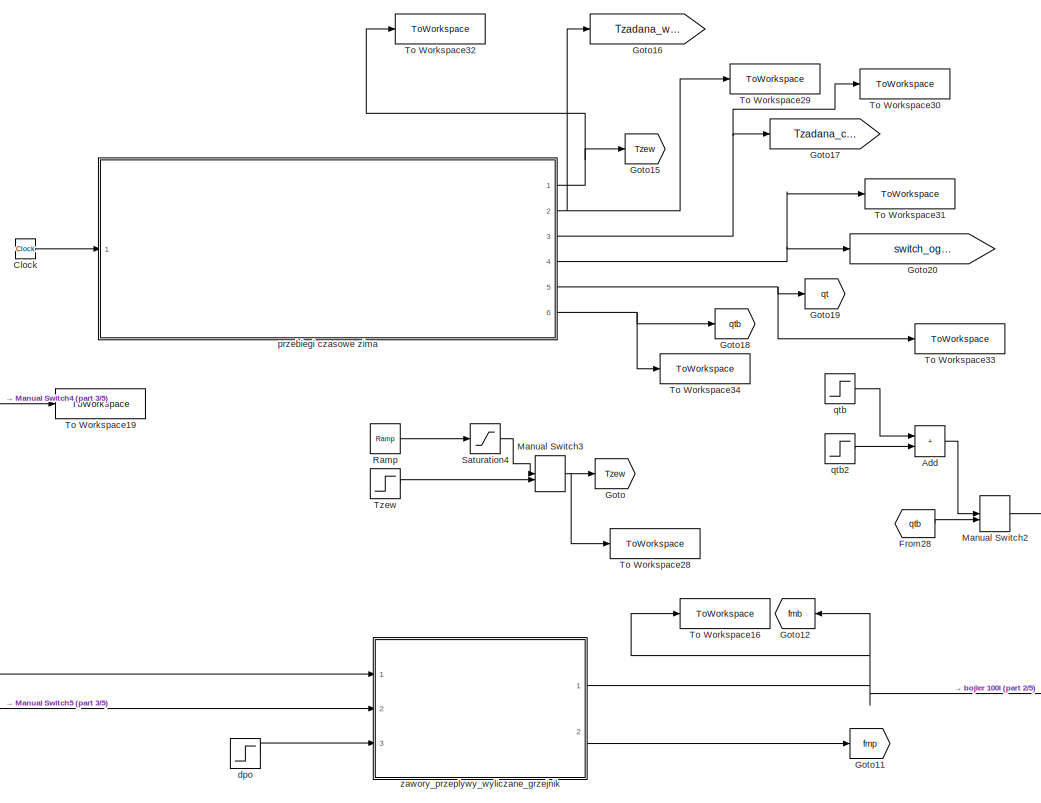
[diagram: root canvas - part 1/5, top center region]
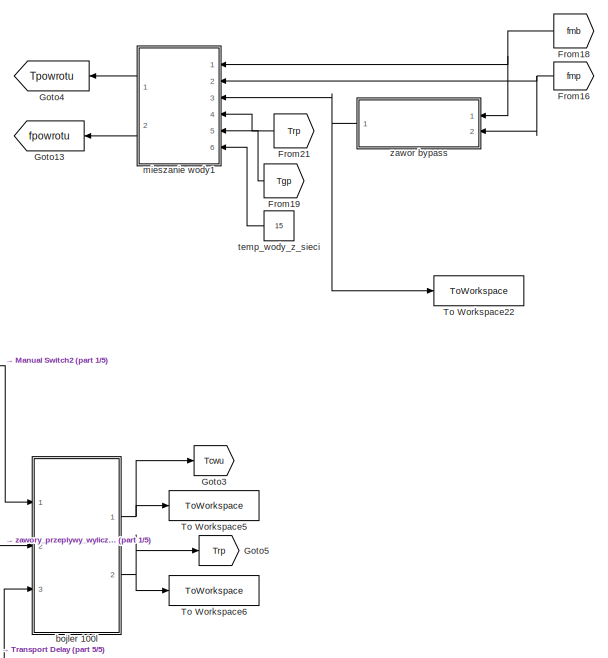
[diagram: root canvas - part 2/5, top right region]
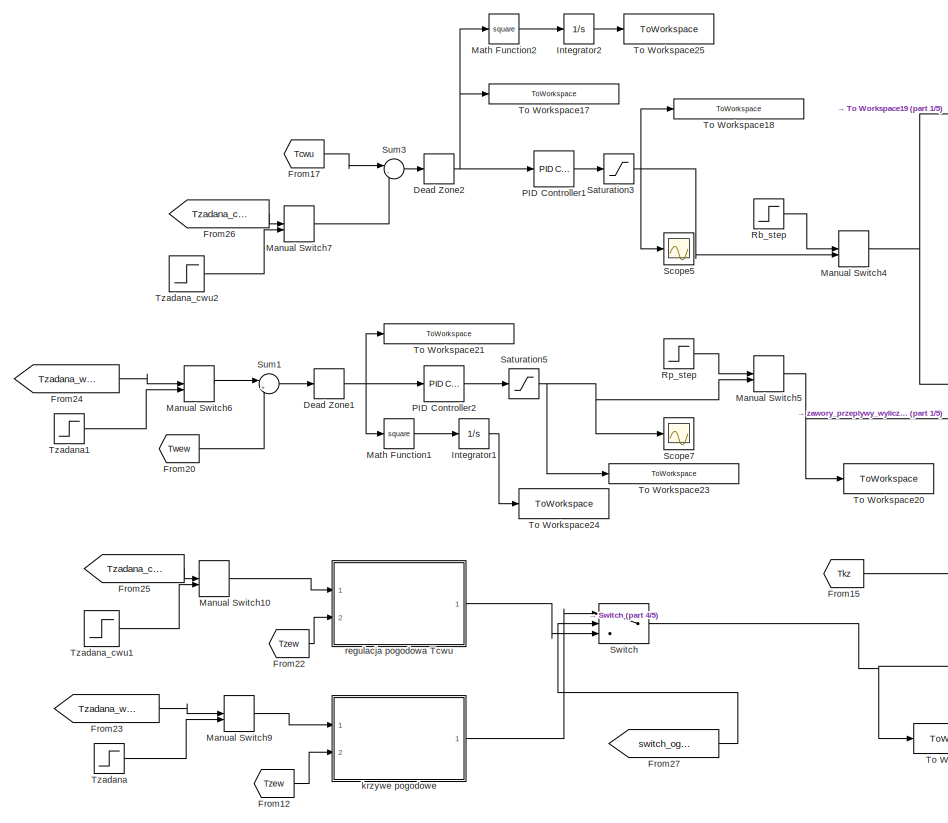
[diagram: root canvas - part 3/5, middle left region]
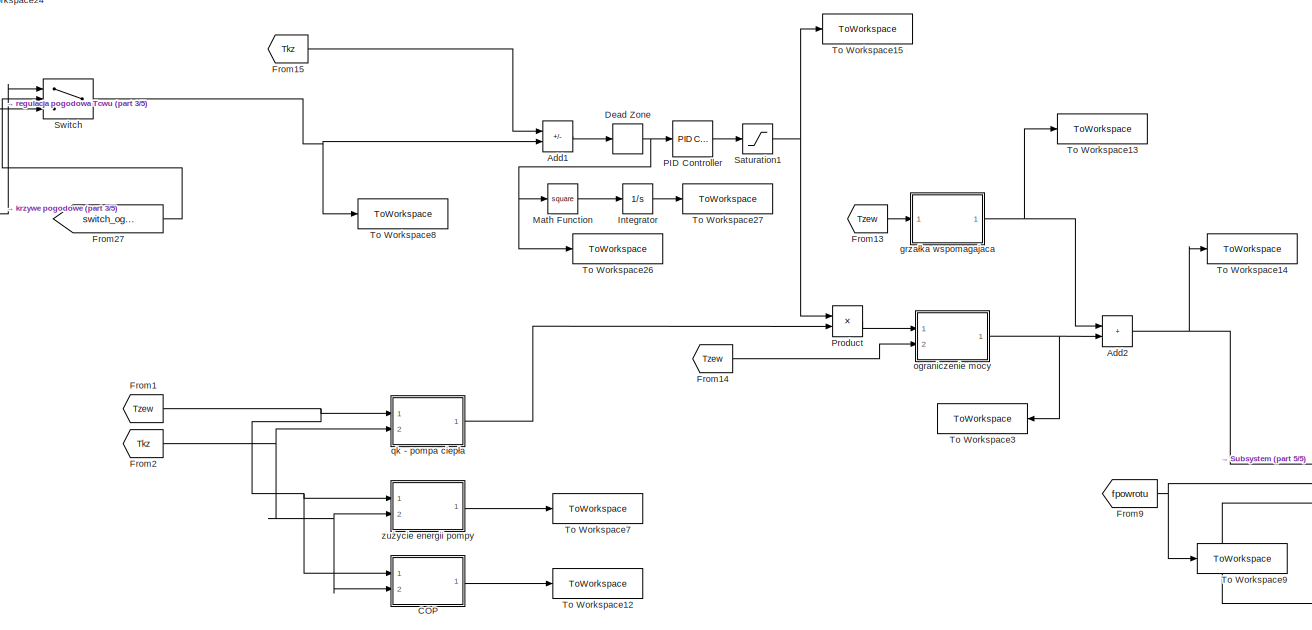
[diagram: root canvas - part 4/5, bottom center region]
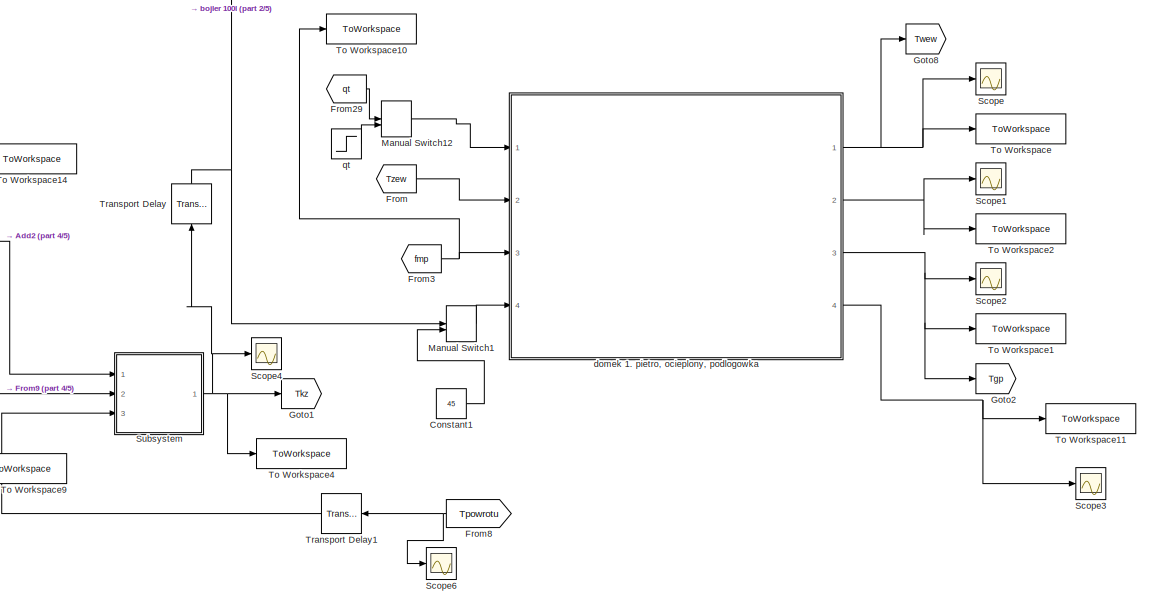
[diagram: root canvas - part 5/5, bottom right region]
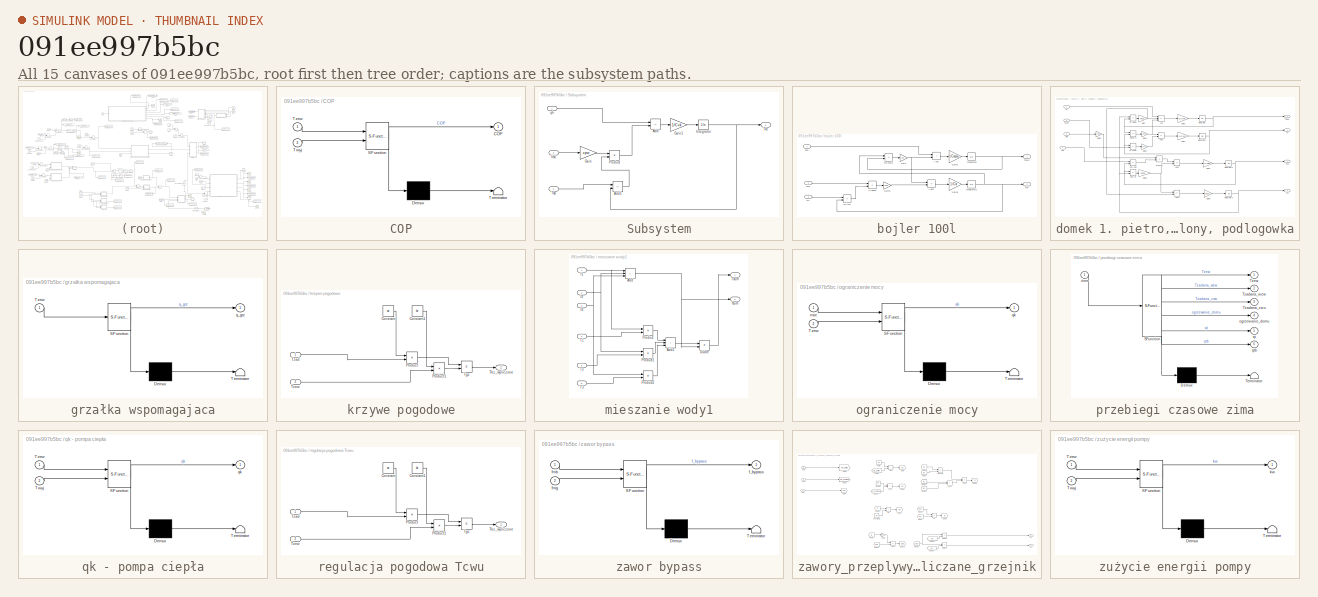
[diagram: thumbnail index - all 15 canvases of the model, root first then tree order]
MODEL slx_091ee997b5bc
KIND model
CONFIG AbsTol = auto
CONFIG EnableMultiTasking = off
CONFIG FixedStep = auto
CONFIG MaxStep = 10
CONFIG MinStep = auto
CONFIG RelTol = 1e-3
CONFIG SampleTimeConstraint = Unconstrained
CONFIG SolverName = VariableStepAuto
CONFIG StartTime = 0.0
CONFIG StopTime = 10.0
BLOCK [Sum] Add
  IconShape = rectangular
  Ports = [2, 1]
BLOCK [Sum] Add1
  IconShape = rectangular
  Inputs = -+
  Ports = [2, 1]
BLOCK [Sum] Add2
  IconShape = rectangular
  Ports = [2, 1]
BLOCK [SubSystem] COP
  ErrorFcn = Stateflow.Translate.translate
  PermitHierarchicalResolution = ExplicitOnly
  Ports = [2, 1]
  RequestExecContextInheritance = off
  SFBlockType = MATLAB Function
  TreatAsAtomicUnit = on
BLOCK [Demux] COP/ Demux 
  Outputs = 1
  Ports = [1, 1]
BLOCK [S-Function] COP/ SFunction 
  EnableBusSupport = on
  FunctionName = sf_sfun
  PortCounts = [2 2]
  Ports = [2, 2]
  SFcnIsStateOwnerBlock = off
  SFunctionDeploymentMode = off
  Tag = Stateflow S-Function 4
BLOCK [Terminator] COP/ Terminator 
BLOCK [Outport] COP/COP
BLOCK [Inport] COP/Twyj
  Port = 2
BLOCK [Inport] COP/Tzew
BLOCK [Clock] Clock
BLOCK [Constant] Constant1
  Value = 45
BLOCK [DeadZone] Dead Zone
  LowerValue = -0.15
  UpperValue = 0.15
BLOCK [DeadZone] Dead Zone1
  LowerValue = -0.55
  UpperValue = 0.55
BLOCK [DeadZone] Dead Zone2
  LowerValue = -0.35
  UpperValue = 0.35
BLOCK [From] From
  GotoTag = Tzew
BLOCK [From] From1
  GotoTag = Tzew
BLOCK [From] From12
  GotoTag = Tzew
BLOCK [From] From13
  GotoTag = Tzew
BLOCK [From] From14
  GotoTag = Tzew
BLOCK [From] From15
  GotoTag = Tkz
BLOCK [From] From16
  GotoTag = fmp
BLOCK [From] From17
  GotoTag = Tcwu
BLOCK [From] From18
  GotoTag = fmb
BLOCK [From] From19
  GotoTag = Tgp
BLOCK [From] From2
  GotoTag = Tkz
BLOCK [From] From20
  GotoTag = Twew
BLOCK [From] From21
  GotoTag = Trp
BLOCK [From] From22
  GotoTag = Tzew
BLOCK [From] From23
  GotoTag = Tzadana_wew
BLOCK [From] From24
  GotoTag = Tzadana_wew
BLOCK [From] From25
  GotoTag = Tzadana_cwu
BLOCK [From] From26
  GotoTag = Tzadana_cwu
BLOCK [From] From27
  GotoTag = switch_ogrzewania
BLOCK [From] From28
  GotoTag = qtb
BLOCK [From] From29
  GotoTag = qt
BLOCK [From] From3
  GotoTag = fmp
BLOCK [From] From8
  GotoTag = Tpowrotu
BLOCK [From] From9
  GotoTag = fpowrotu
BLOCK [Goto] Goto
  Commented = on
  GotoTag = Tzew
BLOCK [Goto] Goto1
  GotoTag = Tkz
BLOCK [Goto] Goto11
  GotoTag = fmp
BLOCK [Goto] Goto12
  GotoTag = fmb
BLOCK [Goto] Goto13
  GotoTag = fpowrotu
BLOCK [Goto] Goto15
  GotoTag = Tzew
BLOCK [Goto] Goto16
  GotoTag = Tzadana_wew
BLOCK [Goto] Goto17
  GotoTag = Tzadana_cwu
BLOCK [Goto] Goto18
  GotoTag = qtb
BLOCK [Goto] Goto19
  GotoTag = qt
BLOCK [Goto] Goto2
  GotoTag = Tgp
BLOCK [Goto] Goto20
  GotoTag = switch_ogrzewania
BLOCK [Goto] Goto3
  GotoTag = Tcwu
BLOCK [Goto] Goto4
  GotoTag = Tpowrotu
BLOCK [Goto] Goto5
  GotoTag = Trp
BLOCK [Goto] Goto8
  GotoTag = Twew
BLOCK [Integrator] Integrator
  Ports = [1, 1]
BLOCK [Integrator] Integrator1
  Ports = [1, 1]
BLOCK [Integrator] Integrator2
  Ports = [1, 1]
BLOCK [ManualSwitch] Manual Switch1
BLOCK [ManualSwitch] Manual Switch10
BLOCK [ManualSwitch] Manual Switch12
BLOCK [ManualSwitch] Manual Switch2
  CurrentSetting = 0
BLOCK [ManualSwitch] Manual Switch3
  Commented = on
BLOCK [ManualSwitch] Manual Switch4
  CurrentSetting = 0
BLOCK [ManualSwitch] Manual Switch5
  CurrentSetting = 0
BLOCK [ManualSwitch] Manual Switch6
BLOCK [ManualSwitch] Manual Switch7
BLOCK [ManualSwitch] Manual Switch9
BLOCK [Math] Math Function
  Operator = square
  Ports = [1, 1]
BLOCK [Math] Math Function1
  Operator = square
  Ports = [1, 1]
BLOCK [Math] Math Function2
  Operator = square
  Ports = [1, 1]
BLOCK [Reference] PID Controller  REF=slpidlib/PID Controller
  Ports = [1, 1]
  SourceBlock = slpidlib/PID Controller
  SourceProductBaseCode = SL
  SourceType = PID 1dof
BLOCK [Reference] PID Controller1  REF=slpidlib/PID Controller
  Ports = [1, 1]
  SourceBlock = slpidlib/PID Controller
  SourceProductBaseCode = SL
  SourceType = PID 1dof
BLOCK [Reference] PID Controller2  REF=slpidlib/PID Controller
  Ports = [1, 1]
  SourceBlock = slpidlib/PID Controller
  SourceProductBaseCode = SL
  SourceType = PID 1dof
BLOCK [Product] Product
  Ports = [2, 1]
BLOCK [Reference] Ramp  REF=simulink/Sources/Ramp
  Commented = on
  Ports = [0, 1]
  SourceBlock = simulink/Sources/Ramp
  SourceProductBaseCode = SL
  SourceType = Ramp
BLOCK [Step] Rb_step
  After = RzN + dRz_b
  Before = RzN
  SampleTime = 0
  Time = skok_czas2
BLOCK [Step] Rp_step
  After = RzN + dRz_p
  Before = RzN
  SampleTime = 0
  Time = skok_czas2
BLOCK [Saturate] Saturation1
  LowerLimit = 0.1
  UpperLimit = 1.42
BLOCK [Saturate] Saturation3
  LowerLimit = 0
  UpperLimit = 999999999999999999999999999999999999999999
BLOCK [Saturate] Saturation4
  Commented = on
  LowerLimit = -10
  UpperLimit = -4
BLOCK [Saturate] Saturation5
  LowerLimit = 0
  UpperLimit = 999999999999999999999999999999999999999999
BLOCK [Scope] Scope
  Floating = off
  NumInputPorts = 1
  Ports = [1]
  ScopeSpecificationString = Simulink.scopes.TimeScopeBlockCfg('CurrentConfiguration', extmgr.ConfigurationSet(extmgr.Configuration('Core','General UI',true),extmgr.Configuration('Core','Source UI',true),extmgr.Configuration('Sources','WiredSimulink',true,'DataLoggingVariableName','ScopeData1'),extmgr.Configuration('Visuals','Time Domain',true,'SerializedDisplays',{struct('MinYLimReal','8.71208','MaxYLimReal','28.71208','YLab...<+1401ch>
BLOCK [Scope] Scope1
  Floating = off
  NumInputPorts = 1
  Ports = [1]
  ScopeSpecificationString = Simulink.scopes.TimeScopeBlockCfg('CurrentConfiguration', extmgr.ConfigurationSet(extmgr.Configuration('Core','General UI',true),extmgr.Configuration('Core','Source UI',true),extmgr.Configuration('Sources','WiredSimulink',true,'DataLoggingVariableName','ScopeData2'),extmgr.Configuration('Visuals','Time Domain',true,'SerializedDisplays',{struct('MinYLimReal','2.75031','MaxYLimReal','5.24997','YLabe...<+1397ch>
BLOCK [Scope] Scope2
  Floating = off
  NumInputPorts = 1
  Ports = [1]
  ScopeSpecificationString = Simulink.scopes.TimeScopeBlockCfg('CurrentConfiguration', extmgr.ConfigurationSet(extmgr.Configuration('Core','General UI',true),extmgr.Configuration('Core','Source UI',true),extmgr.Configuration('Sources','WiredSimulink',true,'DataLoggingVariableName','ScopeData3'),extmgr.Configuration('Visuals','Time Domain',true,'SerializedDisplays',{struct('MinYLimReal','29.37575','MaxYLimReal','35.62492','YLa...<+1405ch>
BLOCK [Scope] Scope3
  Floating = off
  NumInputPorts = 1
  Ports = [1]
  ScopeSpecificationString = Simulink.scopes.TimeScopeBlockCfg('CurrentConfiguration', extmgr.ConfigurationSet(extmgr.Configuration('Core','General UI',true),extmgr.Configuration('Core','Source UI',true),extmgr.Configuration('Sources','WiredSimulink',true,'DataLoggingVariableName','ScopeData4'),extmgr.Configuration('Visuals','Time Domain',true,'SerializedDisplays',{struct('MinYLimReal','23.16317','MaxYLimReal','28.53743','YLa...<+1405ch>
BLOCK [Scope] Scope4
  Floating = off
  NumInputPorts = 1
  Ports = [1]
  ScopeSpecificationString = Simulink.scopes.TimeScopeBlockCfg('CurrentConfiguration', extmgr.ConfigurationSet(extmgr.Configuration('Core','General UI',true),extmgr.Configuration('Core','Source UI',true),extmgr.Configuration('Sources','WiredSimulink',true,'DataLoggingVariableName','ScopeData5'),extmgr.Configuration('Visuals','Time Domain',true,'SerializedDisplays',{struct('MinYLimReal','32.60181','MaxYLimReal','52.60181','YLa...<+1404ch>
BLOCK [Scope] Scope5
  Floating = off
  NumInputPorts = 1
  Ports = [1]
  ScopeSpecificationString = Simulink.scopes.TimeScopeBlockCfg('CurrentConfiguration', extmgr.ConfigurationSet(extmgr.Configuration('Core','General UI',true),extmgr.Configuration('Core','Source UI',true),extmgr.Configuration('Sources','WiredSimulink',true,'DataLoggingVariableName','ScopeData1'),extmgr.Configuration('Visuals','Time Domain',true,'SerializedDisplays',{struct('MinYLimReal','-12500.00000','MaxYLimReal','112500.000...<+1403ch>
BLOCK [Scope] Scope6
  Floating = off
  NumInputPorts = 1
  Ports = [1]
  ScopeSpecificationString = Simulink.scopes.TimeScopeBlockCfg('CurrentConfiguration', extmgr.ConfigurationSet(extmgr.Configuration('Core','General UI',true),extmgr.Configuration('Core','Source UI',true),extmgr.Configuration('Sources','WiredSimulink',true),extmgr.Configuration('Visuals','Time Domain',true,'SerializedDisplays',{struct('MinYLimReal','29.37575','MaxYLimReal','35.62492','YLabelReal','','MinYLimMag','29.37575','Ma...<+1396ch>
BLOCK [Scope] Scope7
  Floating = off
  NumInputPorts = 1
  Ports = [1]
  ScopeSpecificationString = Simulink.scopes.TimeScopeBlockCfg('CurrentConfiguration', extmgr.ConfigurationSet(extmgr.Configuration('Core','General UI',true),extmgr.Configuration('Core','Source UI',true),extmgr.Configuration('Sources','WiredSimulink',true,'DataLoggingVariableName','ScopeData2'),extmgr.Configuration('Visuals','Time Domain',true,'SerializedDisplays',{struct('MinYLimReal','-12500.00000','MaxYLimReal','112500.000...<+1403ch>
BLOCK [SubSystem] Subsystem
  Ports = [3, 1]
  RequestExecContextInheritance = off
BLOCK [Sum] Subsystem/Add
  IconShape = rectangular
  Inputs = +-
  Ports = [2, 1]
BLOCK [Sum] Subsystem/Add1
  IconShape = rectangular
  Inputs = -+
  Ports = [2, 1]
BLOCK [Gain] Subsystem/Gain
  Gain = cpw
BLOCK [Gain] Subsystem/Gain1
  Gain = 1/Cvk
BLOCK [Integrator] Subsystem/Integrator
  InitialCondition = Tkz0
  Ports = [1, 1]
BLOCK [Product] Subsystem/Product
  Ports = [2, 1]
BLOCK [Inport] Subsystem/Tkp
  Port = 3
BLOCK [Outport] Subsystem/Tkz
BLOCK [Inport] Subsystem/fmk
  Port = 2
BLOCK [Inport] Subsystem/qk
BLOCK [Sum] Sum1
  Inputs = |+-
  Ports = [2, 1]
BLOCK [Sum] Sum3
  Inputs = |-+
  Ports = [2, 1]
BLOCK [Switch] Switch
  InputSameDT = off
  SaturateOnIntegerOverflow = off
  Threshold = 1
BLOCK [ToWorkspace] To Workspace
  FixptAsFi = on
  MaxDataPoints = inf
  Ports = [1]
  SampleTime = -1
  VariableName = Twew
BLOCK [ToWorkspace] To Workspace1
  FixptAsFi = on
  MaxDataPoints = inf
  Ports = [1]
  SampleTime = -1
  VariableName = Tgp
BLOCK [ToWorkspace] To Workspace10
  FixptAsFi = on
  MaxDataPoints = inf
  Ports = [1]
  SampleTime = -1
  VariableName = f_dom
BLOCK [ToWorkspace] To Workspace11
  FixptAsFi = on
  MaxDataPoints = inf
  Ports = [1]
  SampleTime = -1
  VariableName = Tp
BLOCK [ToWorkspace] To Workspace12
  FixptAsFi = on
  MaxDataPoints = inf
  Ports = [1]
  SampleTime = -1
  VariableName = COP
BLOCK [ToWorkspace] To Workspace13
  FixptAsFi = on
  MaxDataPoints = inf
  Ports = [1]
  SampleTime = -1
  VariableName = kw_q_grz
BLOCK [ToWorkspace] To Workspace14
  FixptAsFi = on
  MaxDataPoints = inf
  Ports = [1]
  SampleTime = -1
  VariableName = CV
BLOCK [ToWorkspace] To Workspace15
  FixptAsFi = on
  MaxDataPoints = inf
  Ports = [1]
  SampleTime = -1
  VariableName = sprezarka
BLOCK [ToWorkspace] To Workspace16
  FixptAsFi = on
  MaxDataPoints = inf
  Ports = [1]
  SampleTime = -1
  VariableName = f_bojler
BLOCK [ToWorkspace] To Workspace17
  FixptAsFi = on
  MaxDataPoints = inf
  Ports = [1]
  SampleTime = -1
  VariableName = uchyb_f_bojlera
BLOCK [ToWorkspace] To Workspace18
  FixptAsFi = on
  MaxDataPoints = inf
  Ports = [1]
  SampleTime = -1
  VariableName = CV_f_bojlera
BLOCK [ToWorkspace] To Workspace19
  FixptAsFi = on
  MaxDataPoints = inf
  Ports = [1]
  SampleTime = -1
  VariableName = Rzb
BLOCK [ToWorkspace] To Workspace2
  FixptAsFi = on
  MaxDataPoints = inf
  Ports = [1]
  SampleTime = -1
  VariableName = Ts
BLOCK [ToWorkspace] To Workspace20
  FixptAsFi = on
  MaxDataPoints = inf
  Ports = [1]
  SampleTime = -1
  VariableName = Rzp
BLOCK [ToWorkspace] To Workspace21
  FixptAsFi = on
  MaxDataPoints = inf
  Ports = [1]
  SampleTime = -1
  VariableName = uchyb_f_domu
BLOCK [ToWorkspace] To Workspace22
  FixptAsFi = on
  MaxDataPoints = inf
  Ports = [1]
  SampleTime = -1
  VariableName = f_bypass
BLOCK [ToWorkspace] To Workspace23
  FixptAsFi = on
  MaxDataPoints = inf
  Ports = [1]
  SampleTime = -1
  VariableName = CV_f_domu
BLOCK [ToWorkspace] To Workspace24
  FixptAsFi = on
  MaxDataPoints = inf
  Ports = [1]
  SampleTime = -1
  VariableName = ISE_f_domu
BLOCK [ToWorkspace] To Workspace25
  FixptAsFi = on
  MaxDataPoints = inf
  Ports = [1]
  SampleTime = -1
  VariableName = ISE_f_bojlera
BLOCK [ToWorkspace] To Workspace26
  FixptAsFi = on
  MaxDataPoints = inf
  Ports = [1]
  SampleTime = -1
  VariableName = uchyb_pi_glowny
BLOCK [ToWorkspace] To Workspace27
  FixptAsFi = on
  MaxDataPoints = inf
  Ports = [1]
  SampleTime = -1
  VariableName = ISE_pi_glowny
BLOCK [ToWorkspace] To Workspace28
  Commented = on
  FixptAsFi = on
  MaxDataPoints = inf
  Ports = [1]
  SampleTime = -1
  VariableName = Tzew
BLOCK [ToWorkspace] To Workspace29
  FixptAsFi = on
  MaxDataPoints = inf
  Ports = [1]
  SampleTime = -1
  VariableName = Tzadana_wew
BLOCK [ToWorkspace] To Workspace3
  FixptAsFi = on
  MaxDataPoints = inf
  Ports = [1]
  SampleTime = -1
  VariableName = qk
BLOCK [ToWorkspace] To Workspace30
  FixptAsFi = on
  MaxDataPoints = inf
  Ports = [1]
  SampleTime = -1
  VariableName = Tzadana_cwu
BLOCK [ToWorkspace] To Workspace31
  FixptAsFi = on
  MaxDataPoints = inf
  Ports = [1]
  SampleTime = -1
  VariableName = switch_ogrzewania
BLOCK [ToWorkspace] To Workspace32
  FixptAsFi = on
  MaxDataPoints = inf
  Ports = [1]
  SampleTime = -1
  VariableName = Tzew1
BLOCK [ToWorkspace] To Workspace33
  FixptAsFi = on
  MaxDataPoints = inf
  Ports = [1]
  SampleTime = -1
  VariableName = qt
BLOCK [ToWorkspace] To Workspace34
  FixptAsFi = on
  MaxDataPoints = inf
  Ports = [1]
  SampleTime = -1
  VariableName = qtb
BLOCK [ToWorkspace] To Workspace4
  FixptAsFi = on
  MaxDataPoints = inf
  Ports = [1]
  SampleTime = -1
  VariableName = Tkz
BLOCK [ToWorkspace] To Workspace5
  FixptAsFi = on
  MaxDataPoints = inf
  Ports = [1]
  SampleTime = -1
  VariableName = Tcwu
BLOCK [ToWorkspace] To Workspace6
  FixptAsFi = on
  MaxDataPoints = inf
  Ports = [1]
  SampleTime = -1
  VariableName = Trp
BLOCK [ToWorkspace] To Workspace7
  FixptAsFi = on
  MaxDataPoints = inf
  Ports = [1]
  SampleTime = -1
  VariableName = kw
BLOCK [ToWorkspace] To Workspace8
  FixptAsFi = on
  MaxDataPoints = inf
  Ports = [1]
  SampleTime = -1
  VariableName = Tkz_wyliczone
BLOCK [ToWorkspace] To Workspace9
  FixptAsFi = on
  MaxDataPoints = inf
  Ports = [1]
  SampleTime = -1
  VariableName = f_pompa
BLOCK [TransportDelay] Transport Delay
  DelayTime = delay
  InitialOutput = TkzN
  NameLocation = right
  Ports = [1, 1]
BLOCK [TransportDelay] Transport Delay1
  DelayTime = delay
  InitialOutput = TkpN
  Ports = [1, 1]
BLOCK [Step] Tzadana
  After = TwewK
  Before = Tzadana0
  SampleTime = 0
  Time = skok_czas
BLOCK [Step] Tzadana1
  After = TwewK
  Before = Tzadana0
  SampleTime = 0
  Time = skok_czas
BLOCK [Step] Tzadana_cwu1
  After = Tset_cwu  + dTcwu
  Before = Tset_cwu
  SampleTime = 0
  Time = skok_czas
BLOCK [Step] Tzadana_cwu2
  After = Tset_cwu  + dTcwu
  Before = Tset_cwu
  SampleTime = 0
  Time = skok_czas
BLOCK [Step] Tzew
  After = TzewN+dTzew
  Before = TzewN
  Commented = on
  SampleTime = 0
  Time = skok_czas0
BLOCK [SubSystem] bojler 100l
  Ports = [3, 2]
  RequestExecContextInheritance = off
BLOCK [Sum] bojler 100l/Add
  IconShape = rectangular
  Ports = [2, 1]
BLOCK [Sum] bojler 100l/Add1
  IconShape = rectangular
  Inputs = -+
  Ports = [2, 1]
BLOCK [Gain] bojler 100l/Gain
  Gain = Kcr
BLOCK [Gain] bojler 100l/Gain1
  Gain = 1/Cvcwu
BLOCK [Gain] bojler 100l/Gain2
  Gain = cpw
BLOCK [Gain] bojler 100l/Gain3
  Gain = 1/Cvr
BLOCK [Integrator] bojler 100l/Integrator
  InitialCondition = Tcwu0
  Ports = [1, 1]
BLOCK [Integrator] bojler 100l/Integrator1
  InitialCondition = Trp0
  Ports = [1, 1]
BLOCK [Product] bojler 100l/Product
  Ports = [2, 1]
BLOCK [Outport] bojler 100l/Tcwu
BLOCK [Outport] bojler 100l/Trp
  Port = 2
BLOCK [Sum] bojler 100l/Trp-Tcwu
  IconShape = rectangular
  Inputs = +-
  Ports = [2, 1]
BLOCK [Inport] bojler 100l/Trz
  Port = 3
BLOCK [Sum] bojler 100l/Trz-Trp
  IconShape = rectangular
  Inputs = +-
  Ports = [2, 1]
BLOCK [Inport] bojler 100l/fmb
  Port = 2
BLOCK [Inport] bojler 100l/qtb
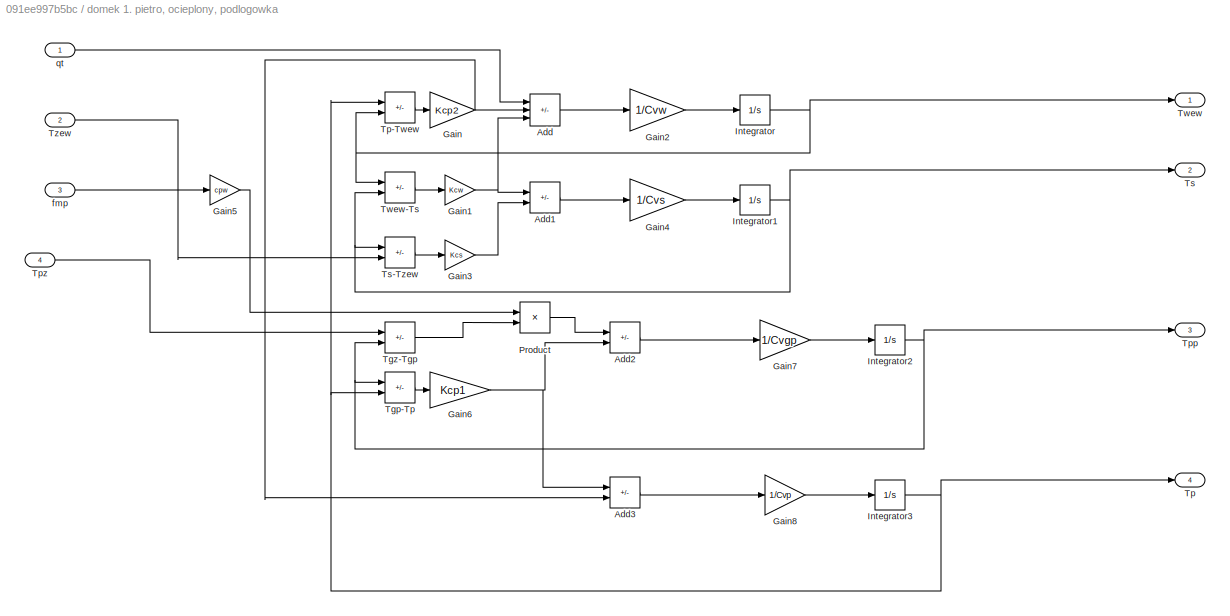
BLOCK [SubSystem] domek 1. pietro, ocieplony, podlogowka
  Ports = [4, 4]
  RequestExecContextInheritance = off
BLOCK [Sum] domek 1. pietro, ocieplony, podlogowka/Add
  IconShape = rectangular
  Inputs = ++-
  Ports = [3, 1]
BLOCK [Sum] domek 1. pietro, ocieplony, podlogowka/Add1
  IconShape = rectangular
  Inputs = +-
  Ports = [2, 1]
BLOCK [Sum] domek 1. pietro, ocieplony, podlogowka/Add2
  IconShape = rectangular
  Inputs = +-
  Ports = [2, 1]
BLOCK [Sum] domek 1. pietro, ocieplony, podlogowka/Add3
  IconShape = rectangular
  Inputs = +-
  Ports = [2, 1]
BLOCK [Gain] domek 1. pietro, ocieplony, podlogowka/Gain
  Gain = Kcp2
BLOCK [Gain] domek 1. pietro, ocieplony, podlogowka/Gain1
  Gain = Kcw
BLOCK [Gain] domek 1. pietro, ocieplony, podlogowka/Gain2
  Gain = 1/Cvw
BLOCK [Gain] domek 1. pietro, ocieplony, podlogowka/Gain3
  Gain = Kcs
BLOCK [Gain] domek 1. pietro, ocieplony, podlogowka/Gain4
  Gain = 1/Cvs
BLOCK [Gain] domek 1. pietro, ocieplony, podlogowka/Gain5
  Gain = cpw
BLOCK [Gain] domek 1. pietro, ocieplony, podlogowka/Gain6
  Gain = Kcp1
BLOCK [Gain] domek 1. pietro, ocieplony, podlogowka/Gain7
  Gain = 1/Cvgp
BLOCK [Gain] domek 1. pietro, ocieplony, podlogowka/Gain8
  Gain = 1/Cvp
BLOCK [Integrator] domek 1. pietro, ocieplony, podlogowka/Integrator
  InitialCondition = Twew0
  Ports = [1, 1]
BLOCK [Integrator] domek 1. pietro, ocieplony, podlogowka/Integrator1
  InitialCondition = Ts0
  Ports = [1, 1]
BLOCK [Integrator] domek 1. pietro, ocieplony, podlogowka/Integrator2
  InitialCondition = Tgp0
  Ports = [1, 1]
BLOCK [Integrator] domek 1. pietro, ocieplony, podlogowka/Integrator3
  InitialCondition = Tp0
  Ports = [1, 1]
BLOCK [Product] domek 1. pietro, ocieplony, podlogowka/Product
  Ports = [2, 1]
BLOCK [Sum] domek 1. pietro, ocieplony, podlogowka/Tgp-Tp
  IconShape = rectangular
  Inputs = +-
  Ports = [2, 1]
BLOCK [Sum] domek 1. pietro, ocieplony, podlogowka/Tgz-Tgp
  IconShape = rectangular
  Inputs = +-
  Ports = [2, 1]
BLOCK [Outport] domek 1. pietro, ocieplony, podlogowka/Tp
  Port = 4
BLOCK [Sum] domek 1. pietro, ocieplony, podlogowka/Tp-Twew
  IconShape = rectangular
  Inputs = +-
  Ports = [2, 1]
BLOCK [Outport] domek 1. pietro, ocieplony, podlogowka/Tpp
  Port = 3
BLOCK [Inport] domek 1. pietro, ocieplony, podlogowka/Tpz
  Port = 4
BLOCK [Outport] domek 1. pietro, ocieplony, podlogowka/Ts
  Port = 2
BLOCK [Sum] domek 1. pietro, ocieplony, podlogowka/Ts-Tzew
  IconShape = rectangular
  Inputs = +-
  Ports = [2, 1]
BLOCK [Outport] domek 1. pietro, ocieplony, podlogowka/Twew
BLOCK [Sum] domek 1. pietro, ocieplony, podlogowka/Twew-Ts
  IconShape = rectangular
  Inputs = +-
  Ports = [2, 1]
BLOCK [Inport] domek 1. pietro, ocieplony, podlogowka/Tzew
  Port = 2
BLOCK [Inport] domek 1. pietro, ocieplony, podlogowka/fmp
  Port = 3
BLOCK [Inport] domek 1. pietro, ocieplony, podlogowka/qt
BLOCK [Step] dpo
  After = dpoN + zmiana_po
  Before = dpoN
  SampleTime = 0
  Time = skok_czas
BLOCK [SubSystem] grzałka wspomagajaca
  ErrorFcn = Stateflow.Translate.translate
  PermitHierarchicalResolution = ExplicitOnly
  Ports = [1, 1]
  RequestExecContextInheritance = off
  SFBlockType = MATLAB Function
  TreatAsAtomicUnit = on
BLOCK [Demux] grzałka wspomagajaca/ Demux 
  Outputs = 1
  Ports = [1, 1]
BLOCK [S-Function] grzałka wspomagajaca/ SFunction 
  EnableBusSupport = on
  FunctionName = sf_sfun
  PortCounts = [1 2]
  Ports = [1, 2]
  SFcnIsStateOwnerBlock = off
  SFunctionDeploymentMode = off
  Tag = Stateflow S-Function 6
BLOCK [Terminator] grzałka wspomagajaca/ Terminator 
BLOCK [Inport] grzałka wspomagajaca/Tzew
BLOCK [Outport] grzałka wspomagajaca/q_grz
BLOCK [SubSystem] krzywe pogodowe
  Ports = [2, 1]
  RequestExecContextInheritance = off
BLOCK [Constant] krzywe pogodowe/Constant
  Value = az
BLOCK [Constant] krzywe pogodowe/Constant1
  Value = bz
BLOCK [Product] krzywe pogodowe/Product
  Ports = [2, 1]
BLOCK [Product] krzywe pogodowe/Product1
  Ports = [2, 1]
BLOCK [Sum] krzywe pogodowe/Tgz
  IconShape = rectangular
  Inputs = +-
  Ports = [2, 1]
BLOCK [Outport] krzywe pogodowe/Tkz_wyliczone
BLOCK [Inport] krzywe pogodowe/Tzad
BLOCK [Inport] krzywe pogodowe/Tzew
  Port = 2
BLOCK [SubSystem] mieszanie wody1
  Ports = [6, 2]
  RequestExecContextInheritance = off
BLOCK [Sum] mieszanie wody1/Add
  IconShape = rectangular
  Inputs = +++
  Ports = [3, 1]
BLOCK [Sum] mieszanie wody1/Add1
  IconShape = rectangular
  Inputs = +++
  Ports = [3, 1]
BLOCK [Product] mieszanie wody1/Divide
  Inputs = */
  Ports = [2, 1]
BLOCK [Product] mieszanie wody1/Product
  Ports = [2, 1]
BLOCK [Product] mieszanie wody1/Product1
  Ports = [2, 1]
BLOCK [Product] mieszanie wody1/Product2
  Ports = [2, 1]
BLOCK [Inport] mieszanie wody1/T1
  Port = 4
BLOCK [Inport] mieszanie wody1/T2
  Port = 5
BLOCK [Inport] mieszanie wody1/T3
  Port = 6
BLOCK [Outport] mieszanie wody1/Tsum
BLOCK [Inport] mieszanie wody1/f1
BLOCK [Inport] mieszanie wody1/f2
  Port = 2
BLOCK [Inport] mieszanie wody1/f3
  Port = 3
BLOCK [Outport] mieszanie wody1/fsum
  Port = 2
BLOCK [SubSystem] ograniczenie mocy
  ErrorFcn = Stateflow.Translate.translate
  PermitHierarchicalResolution = ExplicitOnly
  Ports = [2, 1]
  RequestExecContextInheritance = off
  SFBlockType = MATLAB Function
  TreatAsAtomicUnit = on
BLOCK [Demux] ograniczenie mocy/ Demux 
  Outputs = 1
  Ports = [1, 1]
BLOCK [S-Function] ograniczenie mocy/ SFunction 
  EnableBusSupport = on
  FunctionName = sf_sfun
  PortCounts = [2 2]
  Ports = [2, 2]
  SFcnIsStateOwnerBlock = off
  SFunctionDeploymentMode = off
  Tag = Stateflow S-Function 5
BLOCK [Terminator] ograniczenie mocy/ Terminator 
BLOCK [Inport] ograniczenie mocy/Tzew
  Port = 2
BLOCK [Inport] ograniczenie mocy/moc
BLOCK [Outport] ograniczenie mocy/qk
BLOCK [SubSystem] przebiegi czasowe zima
  ErrorFcn = Stateflow.Translate.translate
  PermitHierarchicalResolution = ExplicitOnly
  Ports = [1, 6]
  RequestExecContextInheritance = off
  SFBlockType = MATLAB Function
  TreatAsAtomicUnit = on
BLOCK [Demux] przebiegi czasowe zima/ Demux 
  Outputs = 1
  Ports = [1, 1]
BLOCK [S-Function] przebiegi czasowe zima/ SFunction 
  EnableBusSupport = on
  FunctionName = sf_sfun
  PortCounts = [1 7]
  Ports = [1, 7]
  SFcnIsStateOwnerBlock = off
  SFunctionDeploymentMode = off
  Tag = Stateflow S-Function 8
BLOCK [Terminator] przebiegi czasowe zima/ Terminator 
BLOCK [Outport] przebiegi czasowe zima/Tzadana_cwu
  Port = 3
BLOCK [Outport] przebiegi czasowe zima/Tzadana_wew
  Port = 2
BLOCK [Outport] przebiegi czasowe zima/Tzew
BLOCK [Outport] przebiegi czasowe zima/ogrzewanie_domu
  Port = 4
BLOCK [Outport] przebiegi czasowe zima/qt
  Port = 5
BLOCK [Outport] przebiegi czasowe zima/qtb
  Port = 6
BLOCK [Inport] przebiegi czasowe zima/time
BLOCK [SubSystem] qk - pompa ciepła
  ErrorFcn = Stateflow.Translate.translate
  PermitHierarchicalResolution = ExplicitOnly
  Ports = [2, 1]
  RequestExecContextInheritance = off
  SFBlockType = MATLAB Function
  TreatAsAtomicUnit = on
BLOCK [Demux] qk - pompa ciepła/ Demux 
  Outputs = 1
  Ports = [1, 1]
BLOCK [S-Function] qk - pompa ciepła/ SFunction 
  EnableBusSupport = on
  FunctionName = sf_sfun
  PortCounts = [2 2]
  Ports = [2, 2]
  SFcnIsStateOwnerBlock = off
  SFunctionDeploymentMode = off
  Tag = Stateflow S-Function 2
BLOCK [Terminator] qk - pompa ciepła/ Terminator 
BLOCK [Inport] qk - pompa ciepła/Twyj
  Port = 2
BLOCK [Inport] qk - pompa ciepła/Tzew
BLOCK [Outport] qk - pompa ciepła/qk
BLOCK [Step] qt
  After = qtN+dqt
  Before = qtN
  SampleTime = 0
  Time = skok_czas
BLOCK [Step] qtb
  After = qtbN + dqtb
  Before = qtbN
  SampleTime = 0
  Time = skok_czas
BLOCK [Step] qtb2
  After = qtb2N + dqtb2
  Before = qtb2N
  SampleTime = 0
  Time = skok_czas2
  ZeroCross = off
BLOCK [SubSystem] regulacja pogodowa Tcwu
  Ports = [2, 1]
  RequestExecContextInheritance = off
BLOCK [Constant] regulacja pogodowa Tcwu/Constant
  Value = az
BLOCK [Constant] regulacja pogodowa Tcwu/Constant1
  Value = bz
BLOCK [Product] regulacja pogodowa Tcwu/Product
  Ports = [2, 1]
BLOCK [Product] regulacja pogodowa Tcwu/Product1
  Ports = [2, 1]
BLOCK [Sum] regulacja pogodowa Tcwu/Tgz
  IconShape = rectangular
  Inputs = +-
  Ports = [2, 1]
BLOCK [Outport] regulacja pogodowa Tcwu/Tkz_wyliczone
BLOCK [Inport] regulacja pogodowa Tcwu/Tzad
BLOCK [Inport] regulacja pogodowa Tcwu/Tzew
  Port = 2
BLOCK [Constant] temp_wody_z_sieci
  Value = 15
BLOCK [SubSystem] zawor bypass
  ErrorFcn = Stateflow.Translate.translate
  PermitHierarchicalResolution = ExplicitOnly
  Ports = [2, 1]
  RequestExecContextInheritance = off
  SFBlockType = MATLAB Function
  TreatAsAtomicUnit = on
BLOCK [Demux] zawor bypass/ Demux 
  Outputs = 1
  Ports = [1, 1]
BLOCK [S-Function] zawor bypass/ SFunction 
  EnableBusSupport = on
  FunctionName = sf_sfun
  PortCounts = [2 2]
  Ports = [2, 2]
  SFcnIsStateOwnerBlock = off
  SFunctionDeploymentMode = off
  Tag = Stateflow S-Function 7
BLOCK [Terminator] zawor bypass/ Terminator 
BLOCK [Outport] zawor bypass/f_bypass
BLOCK [Inport] zawor bypass/fmb
BLOCK [Inport] zawor bypass/fmg
  Port = 2
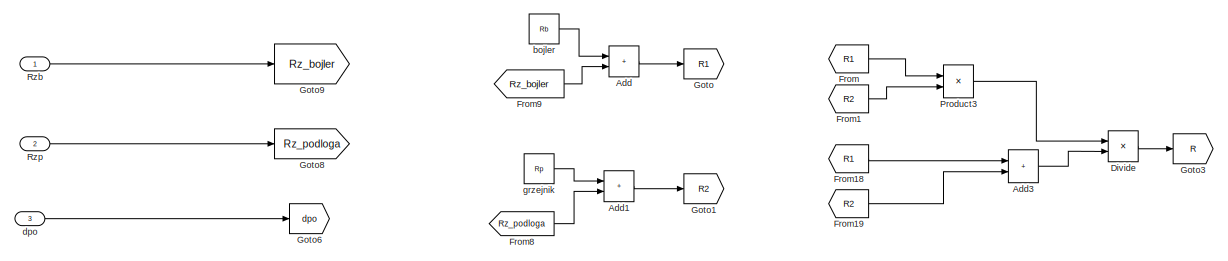
[diagram: zawory_przeplywy_wyliczane_grzejnik - part 1/2, full width, top band]
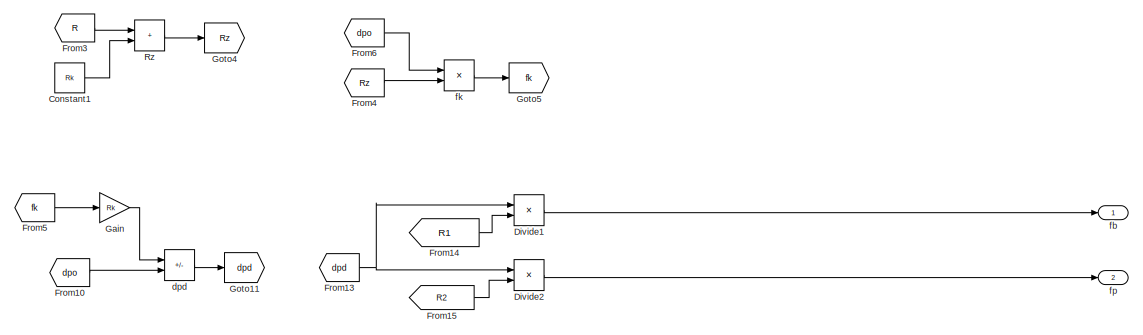
[diagram: zawory_przeplywy_wyliczane_grzejnik - part 2/2, bottom center region]
BLOCK [SubSystem] zawory_przeplywy_wyliczane_grzejnik
  Ports = [3, 2]
  RequestExecContextInheritance = off
BLOCK [Sum] zawory_przeplywy_wyliczane_grzejnik/Add
  IconShape = rectangular
  Ports = [2, 1]
BLOCK [Sum] zawory_przeplywy_wyliczane_grzejnik/Add1
  IconShape = rectangular
  Ports = [2, 1]
BLOCK [Sum] zawory_przeplywy_wyliczane_grzejnik/Add3
  IconShape = rectangular
  Ports = [2, 1]
BLOCK [Constant] zawory_przeplywy_wyliczane_grzejnik/Constant1
  Value = Rk
BLOCK [Product] zawory_przeplywy_wyliczane_grzejnik/Divide
  Inputs = */
  Ports = [2, 1]
BLOCK [Product] zawory_przeplywy_wyliczane_grzejnik/Divide1
  Inputs = */
  Ports = [2, 1]
BLOCK [Product] zawory_przeplywy_wyliczane_grzejnik/Divide2
  Inputs = */
  Ports = [2, 1]
BLOCK [From] zawory_przeplywy_wyliczane_grzejnik/From
  GotoTag = R1
BLOCK [From] zawory_przeplywy_wyliczane_grzejnik/From1
  GotoTag = R2
BLOCK [From] zawory_przeplywy_wyliczane_grzejnik/From10
  GotoTag = dpo
BLOCK [From] zawory_przeplywy_wyliczane_grzejnik/From13
  GotoTag = dpd
BLOCK [From] zawory_przeplywy_wyliczane_grzejnik/From14
  GotoTag = R1
BLOCK [From] zawory_przeplywy_wyliczane_grzejnik/From15
  GotoTag = R2
BLOCK [From] zawory_przeplywy_wyliczane_grzejnik/From18
  GotoTag = R1
BLOCK [From] zawory_przeplywy_wyliczane_grzejnik/From19
  GotoTag = R2
BLOCK [From] zawory_przeplywy_wyliczane_grzejnik/From3
  GotoTag = R
BLOCK [From] zawory_przeplywy_wyliczane_grzejnik/From4
  GotoTag = Rz
BLOCK [From] zawory_przeplywy_wyliczane_grzejnik/From5
  GotoTag = fk
BLOCK [From] zawory_przeplywy_wyliczane_grzejnik/From6
  GotoTag = dpo
BLOCK [From] zawory_przeplywy_wyliczane_grzejnik/From8
  GotoTag = Rz_podloga
BLOCK [From] zawory_przeplywy_wyliczane_grzejnik/From9
  GotoTag = Rz_bojler
BLOCK [Gain] zawory_przeplywy_wyliczane_grzejnik/Gain
  Gain = Rk
BLOCK [Goto] zawory_przeplywy_wyliczane_grzejnik/Goto
  GotoTag = R1
BLOCK [Goto] zawory_przeplywy_wyliczane_grzejnik/Goto1
  GotoTag = R2
BLOCK [Goto] zawory_przeplywy_wyliczane_grzejnik/Goto11
  GotoTag = dpd
BLOCK [Goto] zawory_przeplywy_wyliczane_grzejnik/Goto3
  GotoTag = R
BLOCK [Goto] zawory_przeplywy_wyliczane_grzejnik/Goto4
  GotoTag = Rz
BLOCK [Goto] zawory_przeplywy_wyliczane_grzejnik/Goto5
  GotoTag = fk
BLOCK [Goto] zawory_przeplywy_wyliczane_grzejnik/Goto6
  GotoTag = dpo
BLOCK [Goto] zawory_przeplywy_wyliczane_grzejnik/Goto8
  GotoTag = Rz_podloga
BLOCK [Goto] zawory_przeplywy_wyliczane_grzejnik/Goto9
  GotoTag = Rz_bojler
BLOCK [Product] zawory_przeplywy_wyliczane_grzejnik/Product3
  Ports = [2, 1]
BLOCK [Sum] zawory_przeplywy_wyliczane_grzejnik/Rz
  IconShape = rectangular
  Ports = [2, 1]
BLOCK [Inport] zawory_przeplywy_wyliczane_grzejnik/Rzb
BLOCK [Inport] zawory_przeplywy_wyliczane_grzejnik/Rzp
  Port = 2
BLOCK [Constant] zawory_przeplywy_wyliczane_grzejnik/bojler
  Value = Rb
BLOCK [Sum] zawory_przeplywy_wyliczane_grzejnik/dpd
  IconShape = rectangular
  Inputs = -+
  Ports = [2, 1]
BLOCK [Inport] zawory_przeplywy_wyliczane_grzejnik/dpo
  Port = 3
BLOCK [Outport] zawory_przeplywy_wyliczane_grzejnik/fb
BLOCK [Product] zawory_przeplywy_wyliczane_grzejnik/fk
  Inputs = */
  Ports = [2, 1]
BLOCK [Outport] zawory_przeplywy_wyliczane_grzejnik/fp
  Port = 2
BLOCK [Constant] zawory_przeplywy_wyliczane_grzejnik/grzejnik
  Value = Rp
BLOCK [SubSystem] zużycie energii pompy
  ErrorFcn = Stateflow.Translate.translate
  PermitHierarchicalResolution = ExplicitOnly
  Ports = [2, 1]
  RequestExecContextInheritance = off
  SFBlockType = MATLAB Function
  TreatAsAtomicUnit = on
BLOCK [Demux] zużycie energii pompy/ Demux 
  Outputs = 1
  Ports = [1, 1]
BLOCK [S-Function] zużycie energii pompy/ SFunction 
  EnableBusSupport = on
  FunctionName = sf_sfun
  PortCounts = [2 2]
  Ports = [2, 2]
  SFcnIsStateOwnerBlock = off
  SFunctionDeploymentMode = off
  Tag = Stateflow S-Function 1
BLOCK [Terminator] zużycie energii pompy/ Terminator 
BLOCK [Inport] zużycie energii pompy/Twyj
  Port = 2
BLOCK [Inport] zużycie energii pompy/Tzew
BLOCK [Outport] zużycie energii pompy/kw
LINE Add1:1 -> Dead Zone:1
NET Add2:1 -> Subsystem:1, To Workspace14:1
LINE Add:1 -> Manual Switch2:1
LINE COP:1 -> To Workspace12:1
LINE Clock:1 -> przebiegi czasowe zima:1
LINE Constant1:1 -> Manual Switch1:2
NET Dead Zone1:1 -> Math Function1:1, PID Controller2:1, To Workspace21:1
NET Dead Zone2:1 -> Math Function2:1, PID Controller1:1, To Workspace17:1
NET Dead Zone:1 -> Math Function:1, PID Controller:1, To Workspace26:1
LINE From12:1 -> krzywe pogodowe:2
LINE From13:1 -> grzałka wspomagajaca:1
LINE From14:1 -> ograniczenie mocy:2
LINE From15:1 -> Add1:1
NET From16:1 -> mieszanie wody1:2, zawor bypass:2
LINE From17:1 -> Sum3:1
NET From18:1 -> mieszanie wody1:1, zawor bypass:1
LINE From19:1 -> mieszanie wody1:5
NET From1:1 -> COP:1, qk - pompa ciepła:1, zużycie energii pompy:1
LINE From20:1 -> Sum1:2
LINE From21:1 -> mieszanie wody1:4
LINE From22:1 -> regulacja pogodowa Tcwu:2
LINE From23:1 -> Manual Switch9:1
LINE From24:1 -> Manual Switch6:1
LINE From25:1 -> Manual Switch10:1
LINE From26:1 -> Manual Switch7:1
LINE From27:1 -> Switch:2
LINE From28:1 -> Manual Switch2:2
LINE From29:1 -> Manual Switch12:1
NET From2:1 -> COP:2, qk - pompa ciepła:2, zużycie energii pompy:2
NET From3:1 -> To Workspace10:1, domek 1. pietro, ocieplony, podlogowka:3
NET From8:1 -> Scope6:1, Transport Delay1:1
NET From9:1 -> Subsystem:2, To Workspace9:1
LINE From:1 -> domek 1. pietro, ocieplony, podlogowka:2
LINE Integrator1:1 -> To Workspace24:1
LINE Integrator2:1 -> To Workspace25:1
LINE Integrator:1 -> To Workspace27:1
LINE Manual Switch10:1 -> regulacja pogodowa Tcwu:1
LINE Manual Switch12:1 -> domek 1. pietro, ocieplony, podlogowka:1
LINE Manual Switch1:1 -> domek 1. pietro, ocieplony, podlogowka:4
LINE Manual Switch2:1 -> bojler 100l:1
NET Manual Switch3:1 -> Goto:1, To Workspace28:1
NET Manual Switch4:1 -> To Workspace19:1, zawory_przeplywy_wyliczane_grzejnik:1
NET Manual Switch5:1 -> To Workspace20:1, zawory_przeplywy_wyliczane_grzejnik:2
LINE Manual Switch6:1 -> Sum1:1
LINE Manual Switch7:1 -> Sum3:2
LINE Manual Switch9:1 -> krzywe pogodowe:1
LINE Math Function1:1 -> Integrator1:1
LINE Math Function2:1 -> Integrator2:1
LINE Math Function:1 -> Integrator:1
LINE PID Controller1:1 -> Saturation3:1
LINE PID Controller2:1 -> Saturation5:1
LINE PID Controller:1 -> Saturation1:1
LINE Product:1 -> ograniczenie mocy:1
LINE Ramp:1 -> Saturation4:1
LINE Rb_step:1 -> Manual Switch4:1
LINE Rp_step:1 -> Manual Switch5:1
NET Saturation1:1 -> Product:1, To Workspace15:1
NET Saturation3:1 -> Manual Switch4:2, Scope5:1, To Workspace18:1
LINE Saturation4:1 -> Manual Switch3:1
NET Saturation5:1 -> Manual Switch5:2, Scope7:1, To Workspace23:1
LINE Subsystem/Add1:1 -> Subsystem/Product:2
LINE Subsystem/Add:1 -> Subsystem/Gain1:1
LINE Subsystem/Gain1:1 -> Subsystem/Integrator:1
LINE Subsystem/Gain:1 -> Subsystem/Product:1
NET Subsystem/Integrator:1 -> Subsystem/Add1:2, Subsystem/Tkz:1
LINE Subsystem/Product:1 -> Subsystem/Add:2
LINE Subsystem/Tkp:1 -> Subsystem/Add1:1
LINE Subsystem/fmk:1 -> Subsystem/Gain:1
LINE Subsystem/qk:1 -> Subsystem/Add:1
NET Subsystem:1 -> Goto1:1, Scope4:1, To Workspace4:1, Transport Delay:1
LINE Sum1:1 -> Dead Zone1:1
LINE Sum3:1 -> Dead Zone2:1
NET Switch:1 -> Add1:2, To Workspace8:1
LINE Transport Delay1:1 -> Subsystem:3
NET Transport Delay:1 -> Manual Switch1:1, bojler 100l:3
LINE Tzadana1:1 -> Manual Switch6:2
LINE Tzadana:1 -> Manual Switch9:2
LINE Tzadana_cwu1:1 -> Manual Switch10:2
LINE Tzadana_cwu2:1 -> Manual Switch7:2
LINE Tzew:1 -> Manual Switch3:2
LINE bojler 100l/Add1:1 -> bojler 100l/Gain3:1
LINE bojler 100l/Add:1 -> bojler 100l/Gain1:1
LINE bojler 100l/Gain1:1 -> bojler 100l/Integrator:1
LINE bojler 100l/Gain2:1 -> bojler 100l/Add1:2
LINE bojler 100l/Gain3:1 -> bojler 100l/Integrator1:1
NET bojler 100l/Gain:1 -> bojler 100l/Add1:1, bojler 100l/Add:2
NET bojler 100l/Integrator1:1 -> bojler 100l/Trp-Tcwu:1, bojler 100l/Trp:1, bojler 100l/Trz-Trp:2
NET bojler 100l/Integrator:1 -> bojler 100l/Tcwu:1, bojler 100l/Trp-Tcwu:2
LINE bojler 100l/Product:1 -> bojler 100l/Gain2:1
LINE bojler 100l/Trp-Tcwu:1 -> bojler 100l/Gain:1
LINE bojler 100l/Trz-Trp:1 -> bojler 100l/Product:2
LINE bojler 100l/Trz:1 -> bojler 100l/Trz-Trp:1
LINE bojler 100l/fmb:1 -> bojler 100l/Product:1
LINE bojler 100l/qtb:1 -> bojler 100l/Add:1
NET bojler 100l:1 -> Goto3:1, To Workspace5:1
NET bojler 100l:2 -> Goto5:1, To Workspace6:1
LINE domek 1. pietro, ocieplony, podlogowka/Add1:1 -> domek 1. pietro, ocieplony, podlogowka/Gain4:1
LINE domek 1. pietro, ocieplony, podlogowka/Add2:1 -> domek 1. pietro, ocieplony, podlogowka/Gain7:1
LINE domek 1. pietro, ocieplony, podlogowka/Add3:1 -> domek 1. pietro, ocieplony, podlogowka/Gain8:1
LINE domek 1. pietro, ocieplony, podlogowka/Add:1 -> domek 1. pietro, ocieplony, podlogowka/Gain2:1
NET domek 1. pietro, ocieplony, podlogowka/Gain1:1 -> domek 1. pietro, ocieplony, podlogowka/Add1:1, domek 1. pietro, ocieplony, podlogowka/Add:3
LINE domek 1. pietro, ocieplony, podlogowka/Gain2:1 -> domek 1. pietro, ocieplony, podlogowka/Integrator:1
LINE domek 1. pietro, ocieplony, podlogowka/Gain3:1 -> domek 1. pietro, ocieplony, podlogowka/Add1:2
LINE domek 1. pietro, ocieplony, podlogowka/Gain4:1 -> domek 1. pietro, ocieplony, podlogowka/Integrator1:1
LINE domek 1. pietro, ocieplony, podlogowka/Gain5:1 -> domek 1. pietro, ocieplony, podlogowka/Product:1
NET domek 1. pietro, ocieplony, podlogowka/Gain6:1 -> domek 1. pietro, ocieplony, podlogowka/Add2:2, domek 1. pietro, ocieplony, podlogowka/Add3:1
LINE domek 1. pietro, ocieplony, podlogowka/Gain7:1 -> domek 1. pietro, ocieplony, podlogowka/Integrator2:1
LINE domek 1. pietro, ocieplony, podlogowka/Gain8:1 -> domek 1. pietro, ocieplony, podlogowka/Integrator3:1
NET domek 1. pietro, ocieplony, podlogowka/Gain:1 -> domek 1. pietro, ocieplony, podlogowka/Add3:2, domek 1. pietro, ocieplony, podlogowka/Add:2
NET domek 1. pietro, ocieplony, podlogowka/Integrator1:1 -> domek 1. pietro, ocieplony, podlogowka/Ts-Tzew:1, domek 1. pietro, ocieplony, podlogowka/Ts:1, domek 1. pietro, ocieplony, podlogowka/Twew-Ts:2
NET domek 1. pietro, ocieplony, podlogowka/Integrator2:1 -> domek 1. pietro, ocieplony, podlogowka/Tgp-Tp:1, domek 1. pietro, ocieplony, podlogowka/Tgz-Tgp:2, domek 1. pietro, ocieplony, podlogowka/Tpp:1
NET domek 1. pietro, ocieplony, podlogowka/Integrator3:1 -> domek 1. pietro, ocieplony, podlogowka/Tgp-Tp:2, domek 1. pietro, ocieplony, podlogowka/Tp-Twew:1, domek 1. pietro, ocieplony, podlogowka/Tp:1
NET domek 1. pietro, ocieplony, podlogowka/Integrator:1 -> domek 1. pietro, ocieplony, podlogowka/Tp-Twew:2, domek 1. pietro, ocieplony, podlogowka/Twew-Ts:1, domek 1. pietro, ocieplony, podlogowka/Twew:1
LINE domek 1. pietro, ocieplony, podlogowka/Product:1 -> domek 1. pietro, ocieplony, podlogowka/Add2:1
LINE domek 1. pietro, ocieplony, podlogowka/Tgp-Tp:1 -> domek 1. pietro, ocieplony, podlogowka/Gain6:1
LINE domek 1. pietro, ocieplony, podlogowka/Tgz-Tgp:1 -> domek 1. pietro, ocieplony, podlogowka/Product:2
LINE domek 1. pietro, ocieplony, podlogowka/Tp-Twew:1 -> domek 1. pietro, ocieplony, podlogowka/Gain:1
LINE domek 1. pietro, ocieplony, podlogowka/Tpz:1 -> domek 1. pietro, ocieplony, podlogowka/Tgz-Tgp:1
LINE domek 1. pietro, ocieplony, podlogowka/Ts-Tzew:1 -> domek 1. pietro, ocieplony, podlogowka/Gain3:1
LINE domek 1. pietro, ocieplony, podlogowka/Twew-Ts:1 -> domek 1. pietro, ocieplony, podlogowka/Gain1:1
LINE domek 1. pietro, ocieplony, podlogowka/Tzew:1 -> domek 1. pietro, ocieplony, podlogowka/Ts-Tzew:2
LINE domek 1. pietro, ocieplony, podlogowka/fmp:1 -> domek 1. pietro, ocieplony, podlogowka/Gain5:1
LINE domek 1. pietro, ocieplony, podlogowka/qt:1 -> domek 1. pietro, ocieplony, podlogowka/Add:1
NET domek 1. pietro, ocieplony, podlogowka:1 -> Goto8:1, Scope:1, To Workspace:1
NET domek 1. pietro, ocieplony, podlogowka:2 -> Scope1:1, To Workspace2:1
NET domek 1. pietro, ocieplony, podlogowka:3 -> Goto2:1, Scope2:1, To Workspace1:1
NET domek 1. pietro, ocieplony, podlogowka:4 -> Scope3:1, To Workspace11:1
LINE dpo:1 -> zawory_przeplywy_wyliczane_grzejnik:3
NET grzałka wspomagajaca:1 -> Add2:1, To Workspace13:1
LINE krzywe pogodowe/Constant1:1 -> krzywe pogodowe/Product1:1
LINE krzywe pogodowe/Constant:1 -> krzywe pogodowe/Product:1
LINE krzywe pogodowe/Product1:1 -> krzywe pogodowe/Tgz:2
LINE krzywe pogodowe/Product:1 -> krzywe pogodowe/Tgz:1
LINE krzywe pogodowe/Tgz:1 -> krzywe pogodowe/Tkz_wyliczone:1
LINE krzywe pogodowe/Tzad:1 -> krzywe pogodowe/Product:2
LINE krzywe pogodowe/Tzew:1 -> krzywe pogodowe/Product1:2
LINE krzywe pogodowe:1 -> Switch:1
LINE mieszanie wody1/Add1:1 -> mieszanie wody1/Divide:1
NET mieszanie wody1/Add:1 -> mieszanie wody1/Divide:2, mieszanie wody1/fsum:1
LINE mieszanie wody1/Divide:1 -> mieszanie wody1/Tsum:1
LINE mieszanie wody1/Product1:1 -> mieszanie wody1/Add1:2
LINE mieszanie wody1/Product2:1 -> mieszanie wody1/Add1:3
LINE mieszanie wody1/Product:1 -> mieszanie wody1/Add1:1
LINE mieszanie wody1/T1:1 -> mieszanie wody1/Product:2
LINE mieszanie wody1/T2:1 -> mieszanie wody1/Product1:2
LINE mieszanie wody1/T3:1 -> mieszanie wody1/Product2:2
NET mieszanie wody1/f1:1 -> mieszanie wody1/Add:1, mieszanie wody1/Product:1
NET mieszanie wody1/f2:1 -> mieszanie wody1/Add:2, mieszanie wody1/Product1:1
NET mieszanie wody1/f3:1 -> mieszanie wody1/Add:3, mieszanie wody1/Product2:1
LINE mieszanie wody1:1 -> Goto4:1
LINE mieszanie wody1:2 -> Goto13:1
NET ograniczenie mocy:1 -> Add2:2, To Workspace3:1
NET przebiegi czasowe zima:1 -> Goto15:1, To Workspace32:1
NET przebiegi czasowe zima:2 -> Goto16:1, To Workspace29:1
NET przebiegi czasowe zima:3 -> Goto17:1, To Workspace30:1
NET przebiegi czasowe zima:4 -> Goto20:1, To Workspace31:1
NET przebiegi czasowe zima:5 -> Goto19:1, To Workspace33:1
NET przebiegi czasowe zima:6 -> Goto18:1, To Workspace34:1
LINE qk - pompa ciepła:1 -> Product:2
LINE qt:1 -> Manual Switch12:2
LINE qtb2:1 -> Add:2
LINE qtb:1 -> Add:1
LINE regulacja pogodowa Tcwu/Constant1:1 -> regulacja pogodowa Tcwu/Product1:1
LINE regulacja pogodowa Tcwu/Constant:1 -> regulacja pogodowa Tcwu/Product:1
LINE regulacja pogodowa Tcwu/Product1:1 -> regulacja pogodowa Tcwu/Tgz:2
LINE regulacja pogodowa Tcwu/Product:1 -> regulacja pogodowa Tcwu/Tgz:1
LINE regulacja pogodowa Tcwu/Tgz:1 -> regulacja pogodowa Tcwu/Tkz_wyliczone:1
LINE regulacja pogodowa Tcwu/Tzad:1 -> regulacja pogodowa Tcwu/Product:2
LINE regulacja pogodowa Tcwu/Tzew:1 -> regulacja pogodowa Tcwu/Product1:2
LINE regulacja pogodowa Tcwu:1 -> Switch:3
LINE temp_wody_z_sieci:1 -> mieszanie wody1:6
NET zawor bypass:1 -> To Workspace22:1, mieszanie wody1:3
LINE zawory_przeplywy_wyliczane_grzejnik/Add1:1 -> zawory_przeplywy_wyliczane_grzejnik/Goto1:1
LINE zawory_przeplywy_wyliczane_grzejnik/Add3:1 -> zawory_przeplywy_wyliczane_grzejnik/Divide:2
LINE zawory_przeplywy_wyliczane_grzejnik/Add:1 -> zawory_przeplywy_wyliczane_grzejnik/Goto:1
LINE zawory_przeplywy_wyliczane_grzejnik/Constant1:1 -> zawory_przeplywy_wyliczane_grzejnik/Rz:2
LINE zawory_przeplywy_wyliczane_grzejnik/Divide1:1 -> zawory_przeplywy_wyliczane_grzejnik/fb:1
LINE zawory_przeplywy_wyliczane_grzejnik/Divide2:1 -> zawory_przeplywy_wyliczane_grzejnik/fp:1
LINE zawory_przeplywy_wyliczane_grzejnik/Divide:1 -> zawory_przeplywy_wyliczane_grzejnik/Goto3:1
LINE zawory_przeplywy_wyliczane_grzejnik/From10:1 -> zawory_przeplywy_wyliczane_grzejnik/dpd:2
NET zawory_przeplywy_wyliczane_grzejnik/From13:1 -> zawory_przeplywy_wyliczane_grzejnik/Divide1:1, zawory_przeplywy_wyliczane_grzejnik/Divide2:1
LINE zawory_przeplywy_wyliczane_grzejnik/From14:1 -> zawory_przeplywy_wyliczane_grzejnik/Divide1:2
LINE zawory_przeplywy_wyliczane_grzejnik/From15:1 -> zawory_przeplywy_wyliczane_grzejnik/Divide2:2
LINE zawory_przeplywy_wyliczane_grzejnik/From18:1 -> zawory_przeplywy_wyliczane_grzejnik/Add3:1
LINE zawory_przeplywy_wyliczane_grzejnik/From19:1 -> zawory_przeplywy_wyliczane_grzejnik/Add3:2
LINE zawory_przeplywy_wyliczane_grzejnik/From1:1 -> zawory_przeplywy_wyliczane_grzejnik/Product3:2
LINE zawory_przeplywy_wyliczane_grzejnik/From3:1 -> zawory_przeplywy_wyliczane_grzejnik/Rz:1
LINE zawory_przeplywy_wyliczane_grzejnik/From4:1 -> zawory_przeplywy_wyliczane_grzejnik/fk:2
LINE zawory_przeplywy_wyliczane_grzejnik/From5:1 -> zawory_przeplywy_wyliczane_grzejnik/Gain:1
LINE zawory_przeplywy_wyliczane_grzejnik/From6:1 -> zawory_przeplywy_wyliczane_grzejnik/fk:1
LINE zawory_przeplywy_wyliczane_grzejnik/From8:1 -> zawory_przeplywy_wyliczane_grzejnik/Add1:2
LINE zawory_przeplywy_wyliczane_grzejnik/From9:1 -> zawory_przeplywy_wyliczane_grzejnik/Add:2
LINE zawory_przeplywy_wyliczane_grzejnik/From:1 -> zawory_przeplywy_wyliczane_grzejnik/Product3:1
LINE zawory_przeplywy_wyliczane_grzejnik/Gain:1 -> zawory_przeplywy_wyliczane_grzejnik/dpd:1
LINE zawory_przeplywy_wyliczane_grzejnik/Product3:1 -> zawory_przeplywy_wyliczane_grzejnik/Divide:1
LINE zawory_przeplywy_wyliczane_grzejnik/Rz:1 -> zawory_przeplywy_wyliczane_grzejnik/Goto4:1
LINE zawory_przeplywy_wyliczane_grzejnik/Rzb:1 -> zawory_przeplywy_wyliczane_grzejnik/Goto9:1
LINE zawory_przeplywy_wyliczane_grzejnik/Rzp:1 -> zawory_przeplywy_wyliczane_grzejnik/Goto8:1
LINE zawory_przeplywy_wyliczane_grzejnik/bojler:1 -> zawory_przeplywy_wyliczane_grzejnik/Add:1
LINE zawory_przeplywy_wyliczane_grzejnik/dpd:1 -> zawory_przeplywy_wyliczane_grzejnik/Goto11:1
LINE zawory_przeplywy_wyliczane_grzejnik/dpo:1 -> zawory_przeplywy_wyliczane_grzejnik/Goto6:1
LINE zawory_przeplywy_wyliczane_grzejnik/fk:1 -> zawory_przeplywy_wyliczane_grzejnik/Goto5:1
LINE zawory_przeplywy_wyliczane_grzejnik/grzejnik:1 -> zawory_przeplywy_wyliczane_grzejnik/Add1:1
NET zawory_przeplywy_wyliczane_grzejnik:1 -> Goto12:1, To Workspace16:1, bojler 100l:2
LINE zawory_przeplywy_wyliczane_grzejnik:2 -> Goto11:1
LINE zużycie energii pompy:1 -> To Workspace7:1
note: NET lines group one-source signal fan-out (src -> all destinations, sorted); 1:1 wires keep LINE
CHART zużycie energii pompy states=1 transitions=1
  STATE_LABEL 'eML_blk_kernel()'
  STATE_LABEL 'SCRIPT:\nfunction kw = fcn(Tzew, Twyj)\nkw = 0;\nif Twyj >= 50\n    if -15 <=Tzew && Tzew < -7\n        kw = 35*Tzew + 4235;\n    elseif -7 <=Tzew && Tzew < 2\n        kw = -20/9*Tzew + 35770/9;\n    elseif 2 <=Tzew && Tzew < 7\n        kw = -72*Tzew + 4114;\n    elseif 7 <=Tzew && Tzew < 10\n        kw = -80*Tzew + 4170;\n    elseif 10 <=Tzew && Tzew < 20\n        kw = 6*Tzew + 3310;\n    elseif 20 <=Tzew && T...<+1354ch>'
CHART qk - pompa ciepła states=1 transitions=1
  STATE_LABEL 'eML_blk_kernel()'
  STATE_LABEL 'SCRIPT:\nfunction qk = fcn(Tzew, Twyj)\nqk = 0;\nif Twyj >= 50\n    if -15 <=Tzew && Tzew < -7\n        qk = 445*Tzew + 9995;\n    elseif -7 <=Tzew && Tzew < 2\n        qk = 830/9*Tzew + 67730/9;\n    elseif 2 <=Tzew && Tzew < 7\n        qk = 392*Tzew + 6926;\n    elseif 7 <=Tzew && Tzew < 10\n        qk = -130/3*Tzew + 29920/3;\n    elseif 10 <=Tzew && Tzew < 20\n        qk = 38*Tzew + 9160;\n    elseif 20 <=T...<+1496ch>'
CHART COP states=1 transitions=1
  STATE_LABEL 'eML_blk_kernel()'
  STATE_LABEL 'SCRIPT:\nfunction COP = fcn(Tzew, Twyj)\nCOP = 0;\nif Twyj >= 50\n    if -15 <=Tzew && Tzew < -7\n        COP = 0.105*Tzew + 2.465;\n    elseif -7 <=Tzew && Tzew < 2\n        COP = 0.0233*Tzew + 1.89333;\n    elseif 2 <=Tzew && Tzew < 7\n        COP = 0.148*Tzew + 1.644;\n    elseif 7 <=Tzew && Tzew < 10\n        COP = 0.05*Tzew + 2.33;\n    elseif 10 <=Tzew && Tzew < 20\n        COP = 0.006*Tzew + 2.77;\n    e...<+1536ch>'
CHART ograniczenie mocy states=1 transitions=1
  STATE_LABEL 'eML_blk_kernel()'
  STATE_LABEL 'SCRIPT:\nfunction qk = fcn(moc, Tzew)\nqk = moc;\nif Tzew < -2 \n    % wg EN 14511 (A–7/W35)\n    if moc < 2700\n        qk = 2700;\n    elseif moc > 7500\n        qk = 7500;\n    else\n        qk = moc;\n    end\nelseif Tzew >= -2 && Tzew <= 5\n    % wg EN 14511 (A2/W35)\n    if moc < 3600\n        qk = 3600;\n    elseif moc > 9000\n        qk = 9000;\n    else\n        qk = moc;\n    end\nelse\n    % wg EN 14511 (A7/...<+124ch>'
CHART grzałka wspomagajaca states=1 transitions=1
  STATE_LABEL 'eML_blk_kernel()'
  STATE_LABEL 'SCRIPT:\nfunction q_grz = fcn(Tzew)\nq_grz = 0;\nif Tzew <= -9 % punkt biwalentny\n    q_grz = 3000;\nelseif Tzew > -9 && Tzew <= -8\n    q_grz = 2000;\nelseif Tzew > -8 && Tzew <= -7\n    q_grz = 1500;\nelseif Tzew > -7 && Tzew <= -6\n    q_grz = 1000;\nelse\n    q_grz = 0;\nend\n'
CHART zawor bypass states=1 transitions=1
  STATE_LABEL 'eML_blk_kernel()'
  STATE_LABEL 'SCRIPT:\nfunction f_bypass = fcn(fmb, fmg)\nif fmb + fmg < 0.194 %f min\n    f_bypass = 0.194 -fmg - fmb;\nelse\n    f_bypass = 0;\nend\n'
CHART przebiegi czasowe zima states=1 transitions=1
  STATE_LABEL 'eML_blk_kernel()'
  STATE_LABEL 'SCRIPT:\nfunction [Tzew, Tzadana_wew, Tzadana_cwu, ogrzewanie_domu, qt, qtb] = fcn(time)\nTzew = -4;\nTzadana_wew = 18;\nTzadana_cwu = 41;\nogrzewanie_domu = 1;\nqt = 0;\nqtb = 0;\nif time < 1003600 %6)\n    Tzew = -4;\n    Tzadana_wew = 20;\n    Tzadana_cwu = 41;\n    ogrzewanie_domu = 1;\n    qt = 0;\n    qtb = 0;\nelseif 1003600 <= time && time <1007200 %<6;7)\n    Tzew = -4;\n    Tzadana_wew = 22;\n    Tzadana_...<+2934ch>'
CHART  states=0 transitions=0
CHART  states=0 transitions=0
CHART  states=0 transitions=0
CHART  states=0 transitions=0
CHART  states=0 transitions=0
CHART  states=0 transitions=0
CHART  states=0 transitions=0
